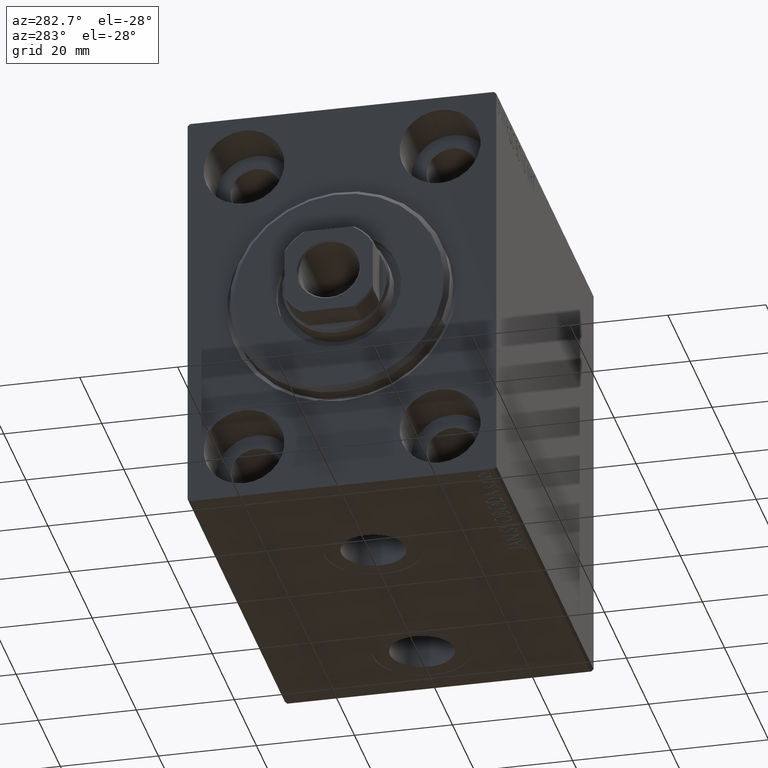
[diagram: clean part render]
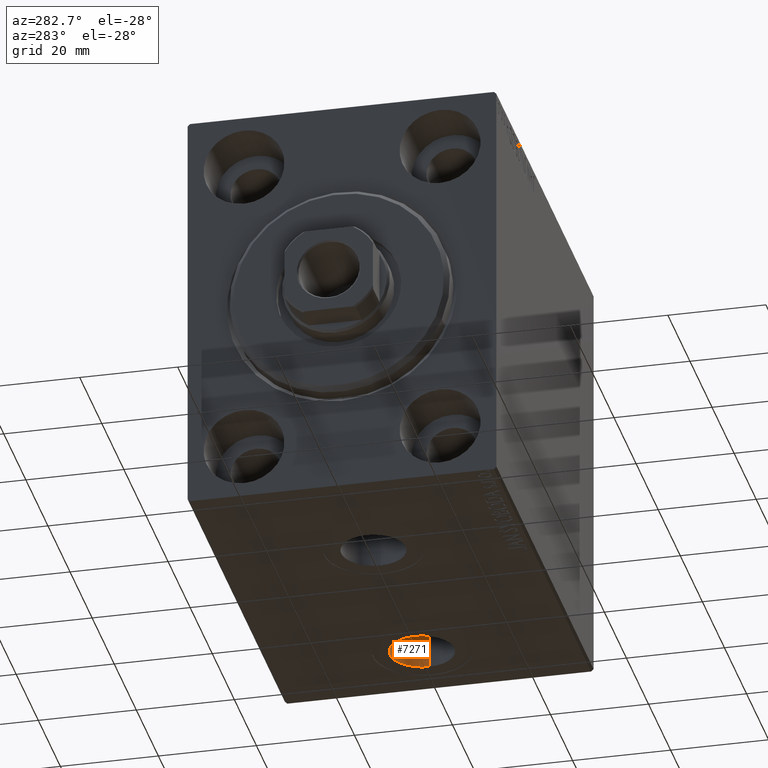
[diagram: same view with one face highlighted and labeled with its STEP entity id]
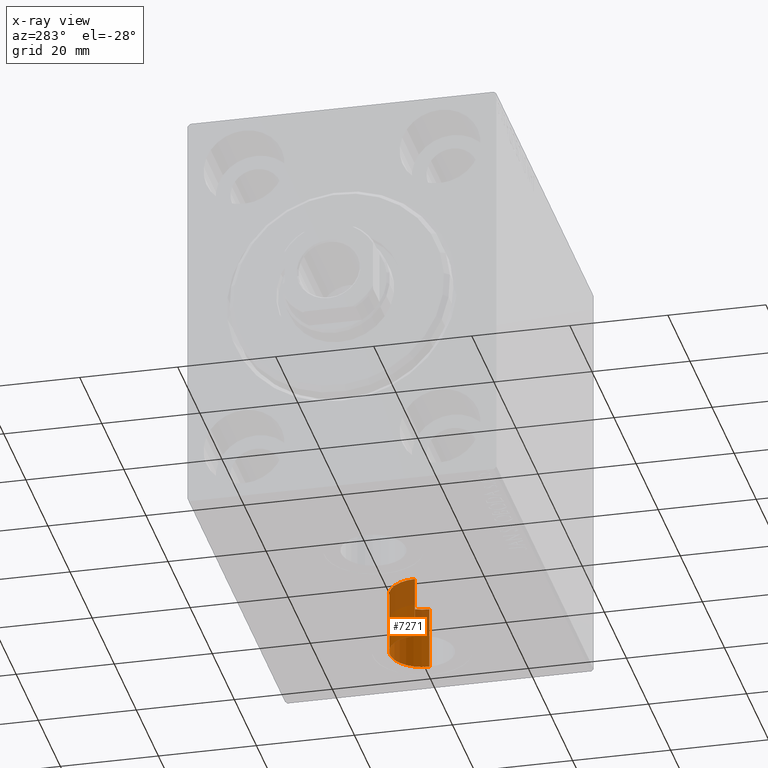
[diagram: x-ray of the same camera — body ghosted, the highlighted face saturated]
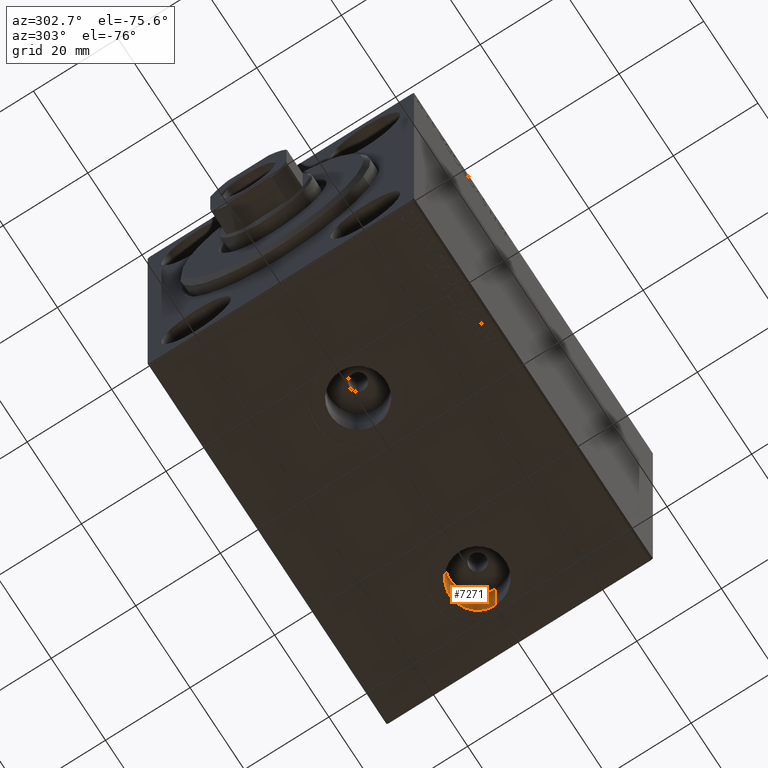
[diagram: same view with one face highlighted and labeled with its STEP entity id]
A machine part, auxiliary view. The second image highlights one B-rep face of the part: STEP entity #7271.
The next image is the same camera in x-ray: the body ghosted, the highlighted face saturated — about 36% of this face is hidden behind the body in this view.
A second angle (auxiliary view) of the same face is appended — the face is thin or edge-on in the first view.
In plain terms, the highlighted cylindrical surface (edge-blend (fillet) strip) has radius 6.58 mm, axis along (-0, -0, -1).
Its self-contained STEP definition (entity closure, byte-faithful):
#2982 = DIRECTION ( 'NONE',  ( -0.000000000000000000, -0.000000000000000000, -1.000000000000000000 ) ) ;
#5368 = CARTESIAN_POINT ( 'NONE',  ( 72.50000000000001421, -7.523326685254106813E-15, -42.40000000000000568 ) ) ;
#5696 = CARTESIAN_POINT ( 'NONE',  ( 79.08000000000001251, -6.717509091415147771E-15, -29.50000000000000711 ) ) ;
#6013 = CARTESIAN_POINT ( 'NONE',  ( 65.92000000000000171, -7.523326685254106813E-15, -42.40000000000000568 ) ) ;
#7271 = ADVANCED_FACE ( 'NONE', ( #30076 ), #26746, .F. ) ;
#7326 = VECTOR ( 'NONE', #26855, 1000.000000000000000 ) ;
#8701 = DIRECTION ( 'NONE',  ( -1.000000000000000000, 0.000000000000000000, 0.000000000000000000 ) ) ;
#9229 = ORIENTED_EDGE ( 'NONE', *, *, #32537, .F. ) ;
#9306 = CARTESIAN_POINT ( 'NONE',  ( 65.92000000000000171, -7.523326685254106813E-15, -29.50000000000000711 ) ) ;
#9418 = CARTESIAN_POINT ( 'NONE',  ( 72.50000000000001421, -7.523326685254106813E-15, -29.50000000000000711 ) ) ;
#10250 = ORIENTED_EDGE ( 'NONE', *, *, #31320, .F. ) ;
#12847 = LINE ( 'NONE', #9306, #7326 ) ;
#13174 = DIRECTION ( 'NONE',  ( -0.000000000000000000, -0.000000000000000000, -1.000000000000000000 ) ) ;
#13618 = AXIS2_PLACEMENT_3D ( 'NONE', #21194, #18294, #27651 ) ;
#17290 = CARTESIAN_POINT ( 'NONE',  ( 79.08000000000001251, -6.717509091415147771E-15, -29.50000000000000711 ) ) ;
#18294 = DIRECTION ( 'NONE',  ( 0.000000000000000000, 0.000000000000000000, -1.000000000000000000 ) ) ;
#18474 = DIRECTION ( 'NONE',  ( 0.000000000000000000, 0.000000000000000000, -1.000000000000000000 ) ) ;
#20033 = ORIENTED_EDGE ( 'NONE', *, *, #34904, .T. ) ;
#21194 = CARTESIAN_POINT ( 'NONE',  ( 72.50000000000001421, -7.523326685254106813E-15, -29.50000000000000711 ) ) ;
#23007 = LINE ( 'NONE', #5696, #42738 ) ;
#23530 = VERTEX_POINT ( 'NONE', #17290 ) ;
#24812 = VERTEX_POINT ( 'NONE', #25821 ) ;
#24862 = AXIS2_PLACEMENT_3D ( 'NONE', #5368, #18474, #8701 ) ;
#25329 = AXIS2_PLACEMENT_3D ( 'NONE', #9418, #13174, #33406 ) ;
#25821 = CARTESIAN_POINT ( 'NONE',  ( 65.92000000000000171, -7.523326685254106813E-15, -29.50000000000000711 ) ) ;
#26746 = CYLINDRICAL_SURFACE ( 'NONE', #25329, 6.580000000000002736 ) ;
#26821 = VERTEX_POINT ( 'NONE', #6013 ) ;
#26855 = DIRECTION ( 'NONE',  ( -0.000000000000000000, -0.000000000000000000, -1.000000000000000000 ) ) ;
#27543 = EDGE_CURVE ( 'NONE', #26821, #29262, #35541, .T. ) ;
#27651 = DIRECTION ( 'NONE',  ( -1.000000000000000000, 0.000000000000000000, 0.000000000000000000 ) ) ;
#29262 = VERTEX_POINT ( 'NONE', #32068 ) ;
#30076 = FACE_OUTER_BOUND ( 'NONE', #43797, .T. ) ;
#31320 = EDGE_CURVE ( 'NONE', #23530, #29262, #23007, .T. ) ;
#32068 = CARTESIAN_POINT ( 'NONE',  ( 79.08000000000001251, -6.717509091415147771E-15, -42.40000000000000568 ) ) ;
#32537 = EDGE_CURVE ( 'NONE', #24812, #23530, #34925, .T. ) ;
#33406 = DIRECTION ( 'NONE',  ( -1.000000000000000000, 0.000000000000000000, 0.000000000000000000 ) ) ;
#34904 = EDGE_CURVE ( 'NONE', #24812, #26821, #12847, .T. ) ;
#34925 = CIRCLE ( 'NONE', #13618, 6.580000000000002736 ) ;
#35541 = CIRCLE ( 'NONE', #24862, 6.580000000000002736 ) ;
#36874 = ORIENTED_EDGE ( 'NONE', *, *, #27543, .T. ) ;
#42738 = VECTOR ( 'NONE', #2982, 1000.000000000000000 ) ;
#43797 = EDGE_LOOP ( 'NONE', ( #10250, #9229, #20033, #36874 ) ) ;